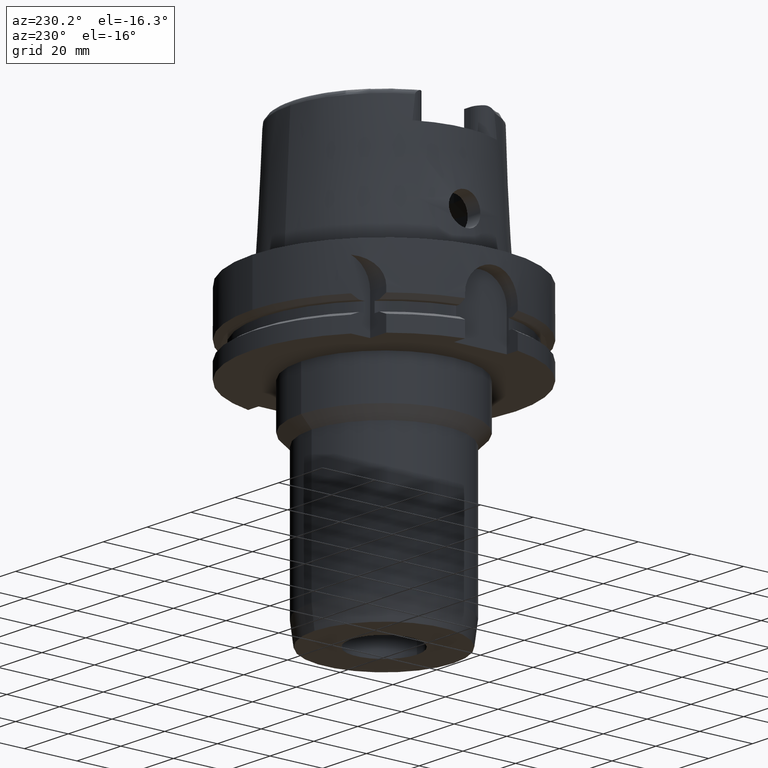
[diagram: clean part render]
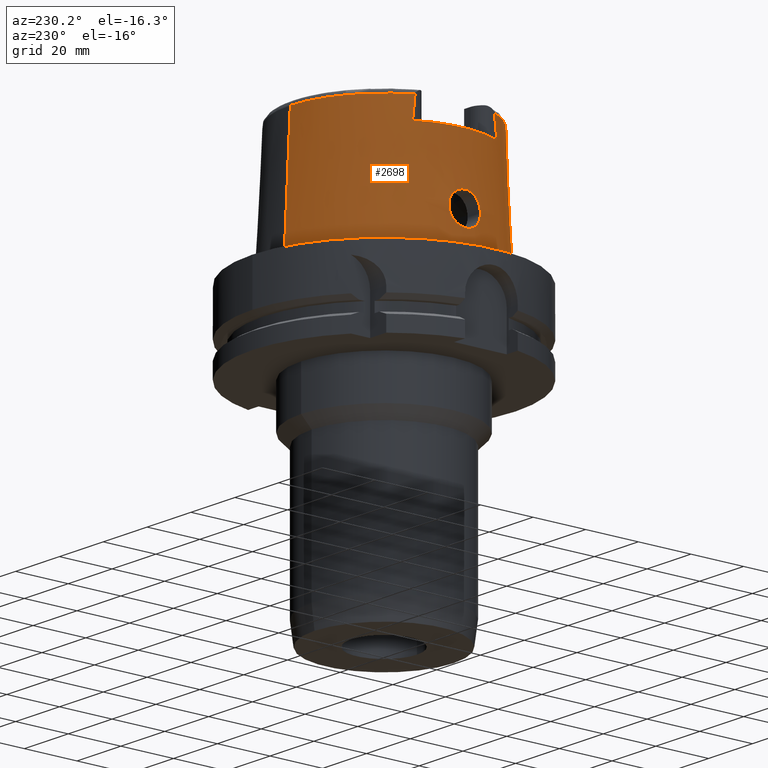
[diagram: same view with one face highlighted and labeled with its STEP entity id]
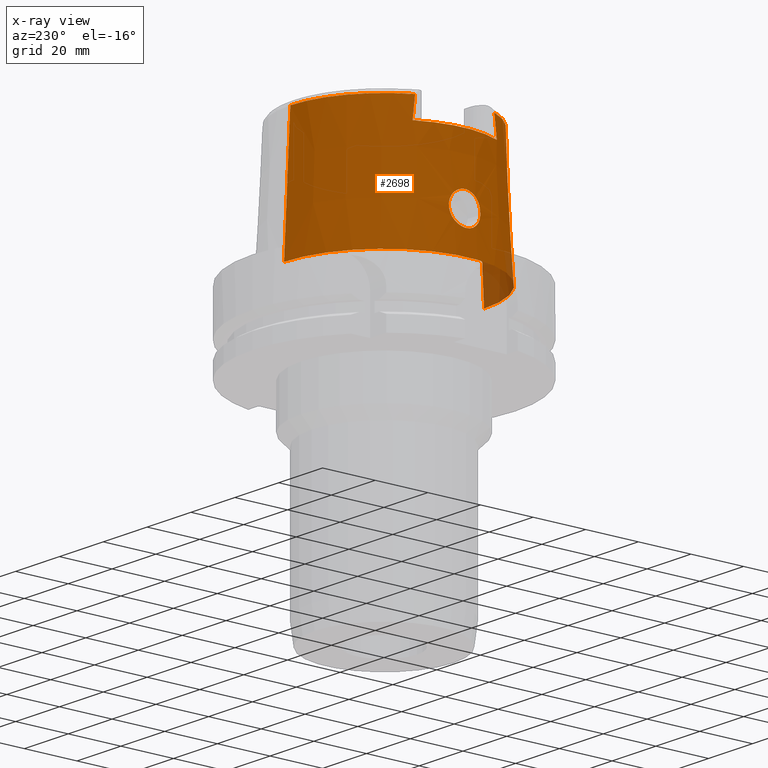
[diagram: x-ray of the same camera — body ghosted, the highlighted face saturated]
A machine part, auxiliary view. The second image highlights one B-rep face of the part: STEP entity #2698.
The next image is the same camera in x-ray: the body ghosted, the highlighted face saturated — about 4% of this face is hidden behind the body in this view.
In plain terms, the highlighted conical surface has half-angle 2.862 deg.
Its self-contained STEP definition (entity closure, byte-faithful):
#130=CARTESIAN_POINT('',(0.E0,0.E0,4.E1));
#131=DIRECTION('',(0.E0,0.E0,-1.E0));
#132=DIRECTION('',(-8.958345712660E-1,-4.443876921391E-1,0.E0));
#133=AXIS2_PLACEMENT_3D('',#130,#131,#132);
#221=CARTESIAN_POINT('',(-3.224999491821E1,-1.506448486796E1,4.809973211292E1));
#281=CARTESIAN_POINT('',(0.E0,0.E0,4.809987853799E1));
#282=DIRECTION('',(0.E0,0.E0,-1.E0));
#283=DIRECTION('',(0.E0,-1.E0,0.E0));
#284=AXIS2_PLACEMENT_3D('',#281,#282,#283);
#289=CARTESIAN_POINT('',(-3.224999876012E1,-1.599794043148E1,4.E1));
#290=CARTESIAN_POINT('',(-3.224999876012E1,-1.589618560063E1,4.090434232027E1));
#291=CARTESIAN_POINT('',(-3.224999990104E1,-1.569149929062E1,4.271014760652E1));
#292=CARTESIAN_POINT('',(-3.225000220619E1,-1.538028255929E1,4.541006257987E1));
#293=CARTESIAN_POINT('',(-3.224999491821E1,-1.517027178371E1,4.720433996264E1));
#294=CARTESIAN_POINT('',(-3.224999491821E1,-1.506448486796E1,4.809973211292E1));
#299=DIRECTION('',(5.154182075151E-5,-4.993927430816E-2,-9.987522546783E-1));
#300=VECTOR('',#299,4.815996991514E1);
#301=CARTESIAN_POINT('',(-2.482252536761E-3,-3.559494263425E1,
4.809987853799E1));
#302=LINE('',#301,#300);
#306=CARTESIAN_POINT('',(-3.225000136841E1,1.506443227039E1,4.809991932073E1));
#307=CARTESIAN_POINT('',(-3.225000136841E1,1.517024629510E1,4.720430018E1));
#308=CARTESIAN_POINT('',(-3.225000007421E1,1.538032523370E1,4.541024586378E1));
#309=CARTESIAN_POINT('',(-3.224999768767E1,1.569154926978E1,4.271027466209E1));
#310=CARTESIAN_POINT('',(-3.225000534596E1,1.589614940559E1,4.090439636549E1));
#311=CARTESIAN_POINT('',(-3.225000534596E1,1.599791057085E1,4.E1));
#316=CARTESIAN_POINT('',(-3.755000165825E1,1.571614468377E-13,9.E0));
#317=CARTESIAN_POINT('',(-3.755000165825E1,-4.745277436107E-1,9.E0));
#318=CARTESIAN_POINT('',(-3.752592512473E1,-1.428586277072E0,9.113728340177E0));
#319=CARTESIAN_POINT('',(-3.742293449427E1,-2.788267983525E0,9.619839619234E0));
#320=CARTESIAN_POINT('',(-3.726763295358E1,-4.008317060830E0,1.045737921955E1));
#321=CARTESIAN_POINT('',(-3.709616003545E1,-4.963512528904E0,1.152710828441E1));
#322=CARTESIAN_POINT('',(-3.692870304481E1,-5.658808483894E0,1.283078531137E1));
#323=CARTESIAN_POINT('',(-3.679916602452E1,-6.013210125864E0,1.425648190979E1));
#324=CARTESIAN_POINT('',(-3.672466253067E1,-6.015456079060E0,1.571903981704E1));
#325=CARTESIAN_POINT('',(-3.670905982498E1,-5.671896092518E0,1.712845696140E1));
#326=CARTESIAN_POINT('',(-3.674325154454E1,-5.000411131924E0,1.841930019600E1));
#327=CARTESIAN_POINT('',(-3.680809766171E1,-4.046540677600E0,1.950977401597E1));
#328=CARTESIAN_POINT('',(-3.688135279221E1,-2.830584925624E0,2.035906232059E1));
#329=CARTESIAN_POINT('',(-3.693655774130E1,-1.451290113227E0,2.088292366157E1));
#330=CARTESIAN_POINT('',(-3.694998175923E1,-4.826311918265E-1,2.1E1));
#331=CARTESIAN_POINT('',(-3.694998175923E1,0.E0,2.1E1));
#336=CARTESIAN_POINT('',(-3.694998175923E1,0.E0,2.1E1));
#337=CARTESIAN_POINT('',(-3.694998175923E1,4.797841826516E-1,2.1E1));
#338=CARTESIAN_POINT('',(-3.693671021509E1,1.442262022520E0,2.088419648105E1));
#339=CARTESIAN_POINT('',(-3.688228864395E1,2.811043496437E0,2.036824969020E1));
#340=CARTESIAN_POINT('',(-3.680969749539E1,4.022435874096E0,1.953031956285E1));
#341=CARTESIAN_POINT('',(-3.674468116276E1,4.978600179336E0,1.845068119423E1));
#342=CARTESIAN_POINT('',(-3.670932532865E1,5.659284413370E0,1.716255571166E1));
#343=CARTESIAN_POINT('',(-3.672366045709E1,6.010478477414E0,1.575512865422E1));
#344=CARTESIAN_POINT('',(-3.679582702238E1,6.017572879285E0,1.430796338283E1));
#345=CARTESIAN_POINT('',(-3.692115801202E1,5.683704331806E0,1.290176786354E1));
#346=CARTESIAN_POINT('',(-3.708601155451E1,5.012102090159E0,1.159660818747E1));
#347=CARTESIAN_POINT('',(-3.726045023378E1,4.056902779555E0,1.049758267633E1));
#348=CARTESIAN_POINT('',(-3.742032889518E1,2.818774990224E0,9.632673776216E0));
#349=CARTESIAN_POINT('',(-3.752613277998E1,1.431084005554E0,9.112674481217E0));
#350=CARTESIAN_POINT('',(-3.755000165825E1,4.733956761232E-1,9.E0));
#351=CARTESIAN_POINT('',(-3.755000165825E1,1.571614468377E-13,9.E0));
#366=DIRECTION('',(-5.154182075159E-5,4.993927430816E-2,-9.987522546783E-1));
#367=VECTOR('',#366,4.815996991514E1);
#368=CARTESIAN_POINT('',(2.482252536765E-3,3.559494263425E1,4.809987853799E1));
#369=LINE('',#368,#367);
#1940=CARTESIAN_POINT('',(0.E0,0.E0,1.023181539495E-12));
#1941=DIRECTION('',(0.E0,0.E0,1.E0));
#1942=DIRECTION('',(0.E0,1.E0,0.E0));
#1943=AXIS2_PLACEMENT_3D('',#1940,#1941,#1942);
#2131=CARTESIAN_POINT('',(-3.225000136841E1,1.506443227039E1,4.809991932073E1));
#2136=CARTESIAN_POINT('',(0.E0,0.E0,4.809987853799E1));
#2137=DIRECTION('',(0.E0,0.E0,-1.E0));
#2138=DIRECTION('',(-9.060276961631E-1,4.232183996300E-1,0.E0));
#2139=AXIS2_PLACEMENT_3D('',#2136,#2137,#2138);
#2224=CARTESIAN_POINT('',(-3.224999876012E1,-1.599794043148E1,4.E1));
#2225=VERTEX_POINT('',#2224);
#2226=CARTESIAN_POINT('',(-3.224999999999E1,1.599793480981E1,4.E1));
#2227=VERTEX_POINT('',#2226);
#2229=VERTEX_POINT('',#2131);
#2230=CARTESIAN_POINT('',(0.E0,3.559494289391E1,4.809987853799E1));
#2231=VERTEX_POINT('',#2230);
#2235=VERTEX_POINT('',#221);
#2238=CARTESIAN_POINT('',(1.065814103640E-14,-3.559494289391E1,
4.809987853799E1));
#2239=VERTEX_POINT('',#2238);
#2240=CARTESIAN_POINT('',(0.E0,-3.800001658252E1,6.110667527537E-13));
#2241=VERTEX_POINT('',#2240);
#2242=CARTESIAN_POINT('',(0.E0,3.800001658252E1,1.023181539495E-12));
#2243=VERTEX_POINT('',#2242);
#2244=VERTEX_POINT('',#316);
#2245=VERTEX_POINT('',#331);
#2672=CARTESIAN_POINT('',(0.E0,0.E0,2.404993926900E1));
#2673=DIRECTION('',(0.E0,0.E0,-1.E0));
#2674=DIRECTION('',(0.E0,-1.E0,0.E0));
#2675=AXIS2_PLACEMENT_3D('',#2672,#2673,#2674);
#2676=CONICAL_SURFACE('',#2675,3.679747973821E1,2.8625E0);
#2677=ORIENTED_EDGE('',*,*,#2581,.F.);
#2678=ORIENTED_EDGE('',*,*,#2664,.T.);
#2679=ORIENTED_EDGE('',*,*,#2654,.F.);
#2681=ORIENTED_EDGE('',*,*,#2680,.T.);
#2683=ORIENTED_EDGE('',*,*,#2682,.F.);
#2685=ORIENTED_EDGE('',*,*,#2684,.F.);
#2687=ORIENTED_EDGE('',*,*,#2686,.F.);
#2689=ORIENTED_EDGE('',*,*,#2688,.T.);
#2690=EDGE_LOOP('',(#2677,#2678,#2679,#2681,#2683,#2685,#2687,#2689));
#2691=FACE_OUTER_BOUND('',#2690,.F.);
#2693=ORIENTED_EDGE('',*,*,#2692,.T.);
#2695=ORIENTED_EDGE('',*,*,#2694,.T.);
#2696=EDGE_LOOP('',(#2693,#2695));
#2697=FACE_BOUND('',#2696,.F.);
#134=CIRCLE('',#133,3.599995025244E1);
#285=CIRCLE('',#284,3.559494289391E1);
#295=B_SPLINE_CURVE_WITH_KNOTS('',3,(#289,#290,#291,#292,#293,#294),
.UNSPECIFIED.,.F.,.F.,(4,1,1,4),(0.E0,3.333333333333E-1,6.666666666667E-1,1.E0),
.UNSPECIFIED.);
#312=B_SPLINE_CURVE_WITH_KNOTS('',3,(#306,#307,#308,#309,#310,#311),
.UNSPECIFIED.,.F.,.F.,(4,1,1,4),(0.E0,3.333333333333E-1,6.666666666667E-1,1.E0),
.UNSPECIFIED.);
#332=B_SPLINE_CURVE_WITH_KNOTS('',3,(#316,#317,#318,#319,#320,#321,#322,#323,
#324,#325,#326,#327,#328,#329,#330,#331),.UNSPECIFIED.,.F.,.F.,(4,1,1,1,1,1,1,1,
1,1,1,1,1,4),(0.E0,7.692307692308E-2,1.538461538462E-1,2.307692307692E-1,
3.076923076923E-1,3.846153846154E-1,4.615384615385E-1,5.384615384615E-1,
6.153846153846E-1,6.923076923077E-1,7.692307692308E-1,8.461538461538E-1,
9.230769230769E-1,1.E0),.UNSPECIFIED.);
#352=B_SPLINE_CURVE_WITH_KNOTS('',3,(#336,#337,#338,#339,#340,#341,#342,#343,
#344,#345,#346,#347,#348,#349,#350,#351),.UNSPECIFIED.,.F.,.F.,(4,1,1,1,1,1,1,1,
1,1,1,1,1,4),(0.E0,7.692307692308E-2,1.538461538462E-1,2.307692307692E-1,
3.076923076923E-1,3.846153846154E-1,4.615384615385E-1,5.384615384615E-1,
6.153846153846E-1,6.923076923077E-1,7.692307692308E-1,8.461538461538E-1,
9.230769230769E-1,1.E0),.UNSPECIFIED.);
#1944=CIRCLE('',#1943,3.800001658252E1);
#2140=CIRCLE('',#2139,3.559494289391E1);
#2581=EDGE_CURVE('',#2225,#2227,#134,.T.);
#2654=EDGE_CURVE('',#2239,#2235,#285,.T.);
#2664=EDGE_CURVE('',#2225,#2235,#295,.T.);
#2680=EDGE_CURVE('',#2239,#2241,#302,.T.);
#2682=EDGE_CURVE('',#2243,#2241,#1944,.T.);
#2684=EDGE_CURVE('',#2231,#2243,#369,.T.);
#2686=EDGE_CURVE('',#2229,#2231,#2140,.T.);
#2688=EDGE_CURVE('',#2229,#2227,#312,.T.);
#2692=EDGE_CURVE('',#2244,#2245,#332,.T.);
#2694=EDGE_CURVE('',#2245,#2244,#352,.T.);
#2698=ADVANCED_FACE('',(#2691,#2697),#2676,.T.);